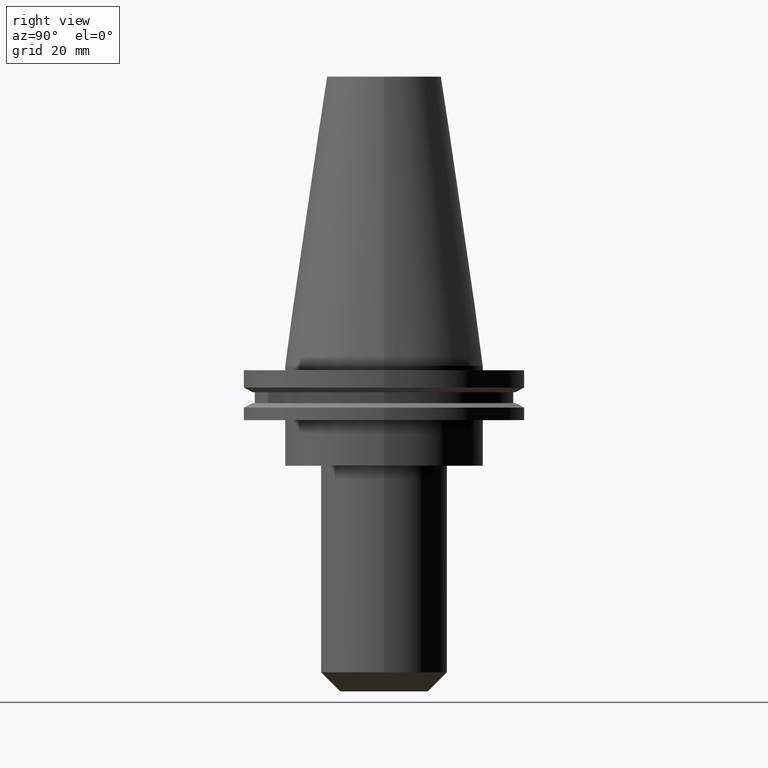
[diagram: clean part render]
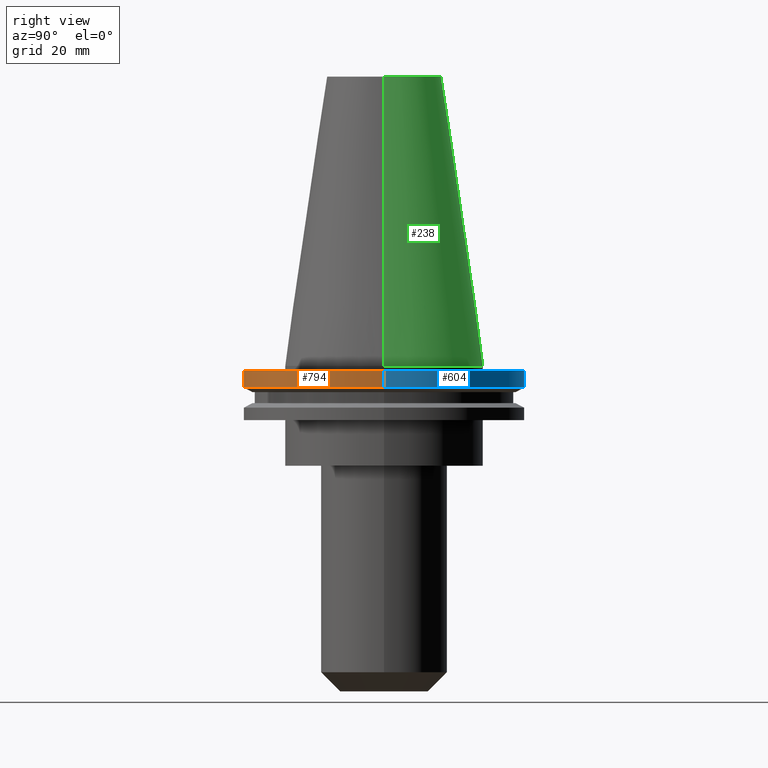
[diagram: same view with three faces highlighted in distinct colors, each labeled with its STEP entity id]
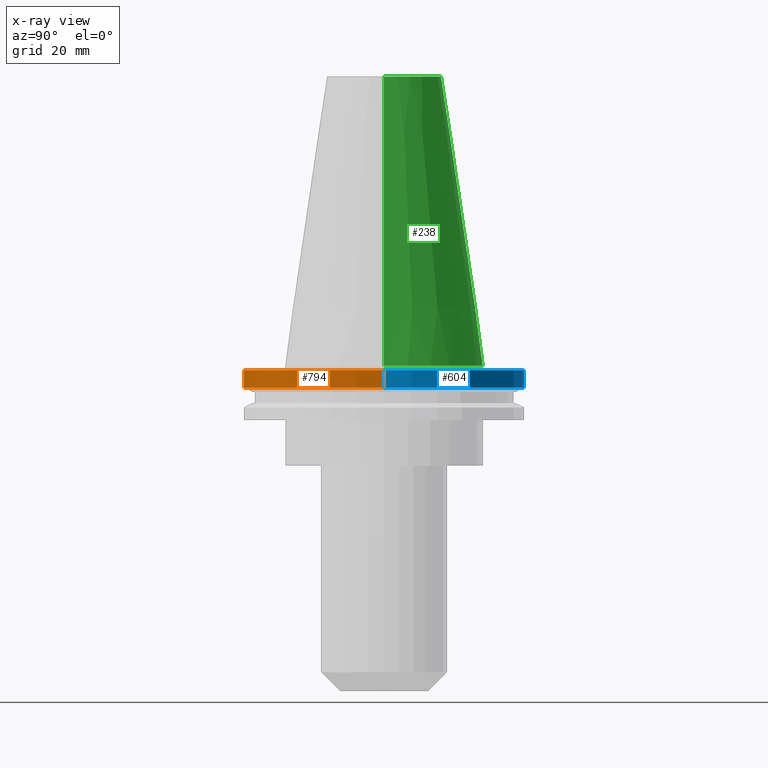
[diagram: x-ray of the same camera — body ghosted, the three highlighted faces saturated]
A machine part, right view with three faces highlighted in distinct colors.
The next image is the same camera in x-ray (body ghosted, the three faces saturated) — at least one of them is partly hidden behind the body in this view.
Their STEP definitions:

[orange] entity #794 — the highlighted cylindrical surface (partial cylindrical patch) has radius 49.215 mm, axis along (-0, -0, 1).
#3 = EDGE_LOOP ( 'NONE', ( #787, #19, #239, #236 ) ) ;
#12 = CARTESIAN_POINT ( 'NONE',  ( 0.000000000000000000, 0.000000000000000000, -7.602389855251287187 ) ) ;
#19 = ORIENTED_EDGE ( 'NONE', *, *, #649, .T. ) ;
#41 = VERTEX_POINT ( 'NONE', #584 ) ;
#53 = EDGE_CURVE ( 'NONE', #225, #312, #187, .T. ) ;
#65 = LINE ( 'NONE', #466, #406 ) ;
#87 = EDGE_CURVE ( 'NONE', #164, #312, #568, .T. ) ;
#144 = CARTESIAN_POINT ( 'NONE',  ( -49.21499999999999631, 6.027099222003697826E-15, -1.499999999999987566 ) ) ;
#164 = VERTEX_POINT ( 'NONE', #144 ) ;
#187 = LINE ( 'NONE', #725, #453 ) ;
#196 = CARTESIAN_POINT ( 'NONE',  ( 0.000000000000000000, 0.000000000000000000, 101.5999999999999943 ) ) ;
#203 = CYLINDRICAL_SURFACE ( 'NONE', #548, 49.21499999999999631 ) ;
#225 = VERTEX_POINT ( 'NONE', #621 ) ;
#236 = ORIENTED_EDGE ( 'NONE', *, *, #87, .F. ) ;
#239 = ORIENTED_EDGE ( 'NONE', *, *, #53, .T. ) ;
#272 = DIRECTION ( 'NONE',  ( -0.000000000000000000, -0.000000000000000000, 1.000000000000000000 ) ) ;
#280 = DIRECTION ( 'NONE',  ( -0.000000000000000000, -0.000000000000000000, 1.000000000000000000 ) ) ;
#312 = VERTEX_POINT ( 'NONE', #423 ) ;
#327 = DIRECTION ( 'NONE',  ( -0.000000000000000000, -0.000000000000000000, 1.000000000000000000 ) ) ;
#337 = DIRECTION ( 'NONE',  ( 1.000000000000000000, 0.000000000000000000, 0.000000000000000000 ) ) ;
#382 = CARTESIAN_POINT ( 'NONE',  ( 0.000000000000000000, 0.000000000000000000, -1.499999999999987566 ) ) ;
#406 = VECTOR ( 'NONE', #614, 1000.000000000000000 ) ;
#423 = CARTESIAN_POINT ( 'NONE',  ( 49.21499999999999631, 0.000000000000000000, -1.499999999999987566 ) ) ;
#430 = AXIS2_PLACEMENT_3D ( 'NONE', #12, #280, #542 ) ;
#443 = DIRECTION ( 'NONE',  ( 1.000000000000000000, 0.000000000000000000, 0.000000000000000000 ) ) ;
#453 = VECTOR ( 'NONE', #327, 1000.000000000000000 ) ;
#466 = CARTESIAN_POINT ( 'NONE',  ( -49.21499999999999631, 6.027099222003697826E-15, 101.5999999999999943 ) ) ;
#528 = FACE_OUTER_BOUND ( 'NONE', #3, .T. ) ;
#542 = DIRECTION ( 'NONE',  ( 1.000000000000000000, 0.000000000000000000, 0.000000000000000000 ) ) ;
#548 = AXIS2_PLACEMENT_3D ( 'NONE', #196, #272, #443 ) ;
#568 = CIRCLE ( 'NONE', #603, 49.21499999999999631 ) ;
#584 = CARTESIAN_POINT ( 'NONE',  ( -49.21500000000000341, 6.027099222003699404E-15, -7.602389855251287187 ) ) ;
#603 = AXIS2_PLACEMENT_3D ( 'NONE', #382, #795, #337 ) ;
#614 = DIRECTION ( 'NONE',  ( -0.000000000000000000, -0.000000000000000000, 1.000000000000000000 ) ) ;
#621 = CARTESIAN_POINT ( 'NONE',  ( 49.21500000000000341, 0.000000000000000000, -7.602389855251287187 ) ) ;
#649 = EDGE_CURVE ( 'NONE', #41, #225, #694, .T. ) ;
#694 = CIRCLE ( 'NONE', #430, 49.21500000000000341 ) ;
#719 = EDGE_CURVE ( 'NONE', #41, #164, #65, .T. ) ;
#725 = CARTESIAN_POINT ( 'NONE',  ( 49.21499999999999631, 0.000000000000000000, 101.5999999999999943 ) ) ;
#787 = ORIENTED_EDGE ( 'NONE', *, *, #719, .F. ) ;
#794 = ADVANCED_FACE ( 'NONE', ( #528 ), #203, .T. ) ;
#795 = DIRECTION ( 'NONE',  ( -0.000000000000000000, -0.000000000000000000, 1.000000000000000000 ) ) ;

[blue] entity #604 — the highlighted cylindrical surface (partial cylindrical patch) has radius 49.215 mm, axis along (-0, -0, 1).
#5 = EDGE_CURVE ( 'NONE', #225, #41, #525, .T. ) ;
#27 = ORIENTED_EDGE ( 'NONE', *, *, #719, .T. ) ;
#41 = VERTEX_POINT ( 'NONE', #584 ) ;
#53 = EDGE_CURVE ( 'NONE', #225, #312, #187, .T. ) ;
#65 = LINE ( 'NONE', #466, #406 ) ;
#83 = DIRECTION ( 'NONE',  ( -0.000000000000000000, -0.000000000000000000, 1.000000000000000000 ) ) ;
#113 = CARTESIAN_POINT ( 'NONE',  ( 0.000000000000000000, 0.000000000000000000, 101.5999999999999943 ) ) ;
#116 = CIRCLE ( 'NONE', #598, 49.21499999999999631 ) ;
#120 = CYLINDRICAL_SURFACE ( 'NONE', #172, 49.21499999999999631 ) ;
#144 = CARTESIAN_POINT ( 'NONE',  ( -49.21499999999999631, 6.027099222003697826E-15, -1.499999999999987566 ) ) ;
#152 = EDGE_LOOP ( 'NONE', ( #687, #27, #608, #838 ) ) ;
#164 = VERTEX_POINT ( 'NONE', #144 ) ;
#172 = AXIS2_PLACEMENT_3D ( 'NONE', #113, #383, #414 ) ;
#187 = LINE ( 'NONE', #725, #453 ) ;
#194 = EDGE_CURVE ( 'NONE', #312, #164, #116, .T. ) ;
#225 = VERTEX_POINT ( 'NONE', #621 ) ;
#312 = VERTEX_POINT ( 'NONE', #423 ) ;
#327 = DIRECTION ( 'NONE',  ( -0.000000000000000000, -0.000000000000000000, 1.000000000000000000 ) ) ;
#346 = AXIS2_PLACEMENT_3D ( 'NONE', #643, #715, #455 ) ;
#383 = DIRECTION ( 'NONE',  ( -0.000000000000000000, -0.000000000000000000, 1.000000000000000000 ) ) ;
#406 = VECTOR ( 'NONE', #614, 1000.000000000000000 ) ;
#412 = CARTESIAN_POINT ( 'NONE',  ( 0.000000000000000000, 0.000000000000000000, -1.499999999999987566 ) ) ;
#414 = DIRECTION ( 'NONE',  ( 1.000000000000000000, 0.000000000000000000, 0.000000000000000000 ) ) ;
#423 = CARTESIAN_POINT ( 'NONE',  ( 49.21499999999999631, 0.000000000000000000, -1.499999999999987566 ) ) ;
#441 = FACE_OUTER_BOUND ( 'NONE', #152, .T. ) ;
#453 = VECTOR ( 'NONE', #327, 1000.000000000000000 ) ;
#455 = DIRECTION ( 'NONE',  ( 1.000000000000000000, 0.000000000000000000, 0.000000000000000000 ) ) ;
#466 = CARTESIAN_POINT ( 'NONE',  ( -49.21499999999999631, 6.027099222003697826E-15, 101.5999999999999943 ) ) ;
#525 = CIRCLE ( 'NONE', #346, 49.21500000000000341 ) ;
#584 = CARTESIAN_POINT ( 'NONE',  ( -49.21500000000000341, 6.027099222003699404E-15, -7.602389855251287187 ) ) ;
#598 = AXIS2_PLACEMENT_3D ( 'NONE', #412, #83, #669 ) ;
#604 = ADVANCED_FACE ( 'NONE', ( #441 ), #120, .T. ) ;
#608 = ORIENTED_EDGE ( 'NONE', *, *, #194, .F. ) ;
#614 = DIRECTION ( 'NONE',  ( -0.000000000000000000, -0.000000000000000000, 1.000000000000000000 ) ) ;
#621 = CARTESIAN_POINT ( 'NONE',  ( 49.21500000000000341, 0.000000000000000000, -7.602389855251287187 ) ) ;
#643 = CARTESIAN_POINT ( 'NONE',  ( 0.000000000000000000, 0.000000000000000000, -7.602389855251287187 ) ) ;
#669 = DIRECTION ( 'NONE',  ( 1.000000000000000000, 0.000000000000000000, 0.000000000000000000 ) ) ;
#687 = ORIENTED_EDGE ( 'NONE', *, *, #5, .T. ) ;
#715 = DIRECTION ( 'NONE',  ( -0.000000000000000000, -0.000000000000000000, 1.000000000000000000 ) ) ;
#719 = EDGE_CURVE ( 'NONE', #41, #164, #65, .T. ) ;
#725 = CARTESIAN_POINT ( 'NONE',  ( 49.21499999999999631, 0.000000000000000000, 101.5999999999999943 ) ) ;
#838 = ORIENTED_EDGE ( 'NONE', *, *, #53, .F. ) ;

[green] entity #238 — the highlighted conical surface has half-angle 8.297 deg.
#21 = VERTEX_POINT ( 'NONE', #721 ) ;
#37 = DIRECTION ( 'NONE',  ( 0.1443082272672999988, 1.767266086135277066E-17, -0.9895327864921755756 ) ) ;
#72 = AXIS2_PLACEMENT_3D ( 'NONE', #837, #759, #102 ) ;
#90 = EDGE_LOOP ( 'NONE', ( #623, #273, #523, #529 ) ) ;
#102 = DIRECTION ( 'NONE',  ( -1.000000000000000000, 0.000000000000000000, 0.000000000000000000 ) ) ;
#104 = LINE ( 'NONE', #774, #738 ) ;
#117 = AXIS2_PLACEMENT_3D ( 'NONE', #447, #320, #259 ) ;
#135 = AXIS2_PLACEMENT_3D ( 'NONE', #753, #361, #685 ) ;
#153 = CARTESIAN_POINT ( 'NONE',  ( 20.10819343178871321, 3.369811209154858606E-15, 101.5999999999999801 ) ) ;
#158 = VERTEX_POINT ( 'NONE', #677 ) ;
#218 = CIRCLE ( 'NONE', #117, 20.10819343178871321 ) ;
#238 = ADVANCED_FACE ( 'NONE', ( #492 ), #653, .T. ) ;
#259 = DIRECTION ( 'NONE',  ( 1.000000000000000000, 0.000000000000000000, 0.000000000000000000 ) ) ;
#273 = ORIENTED_EDGE ( 'NONE', *, *, #335, .T. ) ;
#275 = EDGE_CURVE ( 'NONE', #158, #21, #104, .T. ) ;
#284 = VERTEX_POINT ( 'NONE', #429 ) ;
#297 = LINE ( 'NONE', #302, #727 ) ;
#302 = CARTESIAN_POINT ( 'NONE',  ( 34.92499999999999005, 4.277078946022130098E-15, 0.000000000000000000 ) ) ;
#320 = DIRECTION ( 'NONE',  ( -0.000000000000000000, -0.000000000000000000, 1.000000000000000000 ) ) ;
#335 = EDGE_CURVE ( 'NONE', #634, #284, #297, .T. ) ;
#361 = DIRECTION ( 'NONE',  ( -0.000000000000000000, -0.000000000000000000, 1.000000000000000000 ) ) ;
#373 = DIRECTION ( 'NONE',  ( -0.1443082272672999988, 0.000000000000000000, -0.9895327864921755756 ) ) ;
#429 = CARTESIAN_POINT ( 'NONE',  ( 34.92499999999999005, 4.277078946022130098E-15, 0.000000000000000000 ) ) ;
#447 = CARTESIAN_POINT ( 'NONE',  ( 0.000000000000000000, 0.000000000000000000, 101.5999999999999801 ) ) ;
#492 = FACE_OUTER_BOUND ( 'NONE', #90, .T. ) ;
#523 = ORIENTED_EDGE ( 'NONE', *, *, #816, .T. ) ;
#529 = ORIENTED_EDGE ( 'NONE', *, *, #275, .F. ) ;
#552 = EDGE_CURVE ( 'NONE', #634, #158, #218, .T. ) ;
#623 = ORIENTED_EDGE ( 'NONE', *, *, #552, .F. ) ;
#634 = VERTEX_POINT ( 'NONE', #153 ) ;
#653 = CONICAL_SURFACE ( 'NONE', #72, 34.92499999999999005, 0.1448138465474119452 ) ;
#677 = CARTESIAN_POINT ( 'NONE',  ( -20.10819343178871321, 0.000000000000000000, 101.5999999999999801 ) ) ;
#685 = DIRECTION ( 'NONE',  ( 1.000000000000000000, 0.000000000000000000, 0.000000000000000000 ) ) ;
#721 = CARTESIAN_POINT ( 'NONE',  ( -34.92499999999999005, 0.000000000000000000, 0.000000000000000000 ) ) ;
#727 = VECTOR ( 'NONE', #37, 999.9999999999998863 ) ;
#738 = VECTOR ( 'NONE', #373, 999.9999999999998863 ) ;
#753 = CARTESIAN_POINT ( 'NONE',  ( 0.000000000000000000, 0.000000000000000000, 0.000000000000000000 ) ) ;
#759 = DIRECTION ( 'NONE',  ( 0.000000000000000000, 0.000000000000000000, -1.000000000000000000 ) ) ;
#774 = CARTESIAN_POINT ( 'NONE',  ( -34.92499999999999005, 0.000000000000000000, 0.000000000000000000 ) ) ;
#816 = EDGE_CURVE ( 'NONE', #284, #21, #844, .T. ) ;
#837 = CARTESIAN_POINT ( 'NONE',  ( 0.000000000000000000, 0.000000000000000000, 0.000000000000000000 ) ) ;
#844 = CIRCLE ( 'NONE', #135, 34.92499999999999005 ) ;